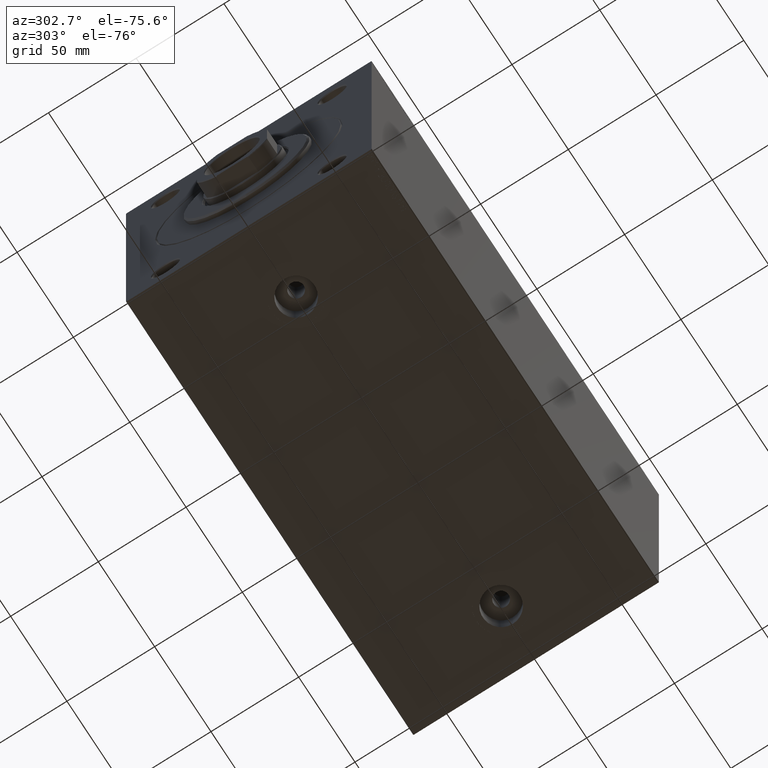
[diagram: clean part render]
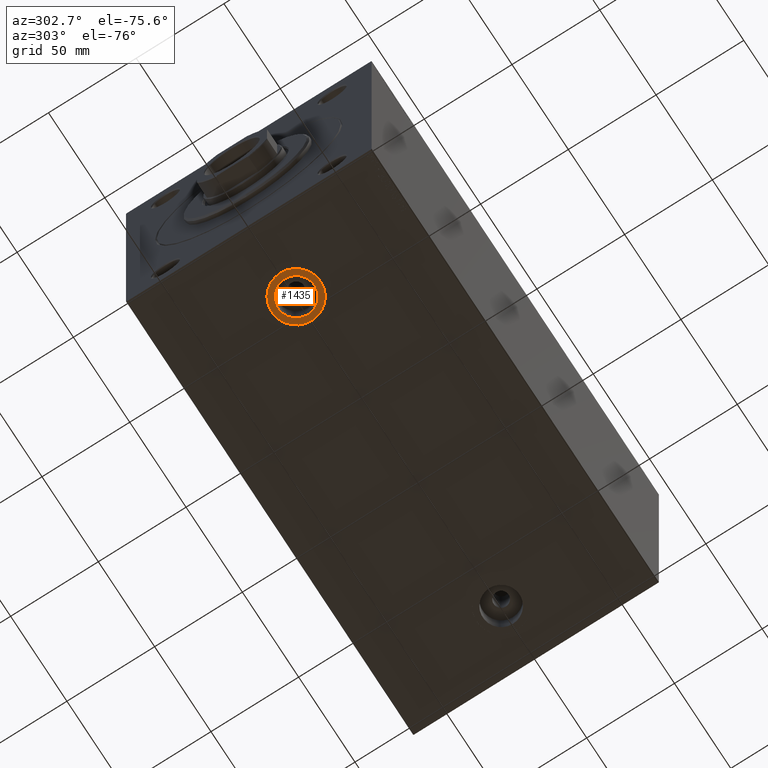
[diagram: same view with one face highlighted and labeled with its STEP entity id]
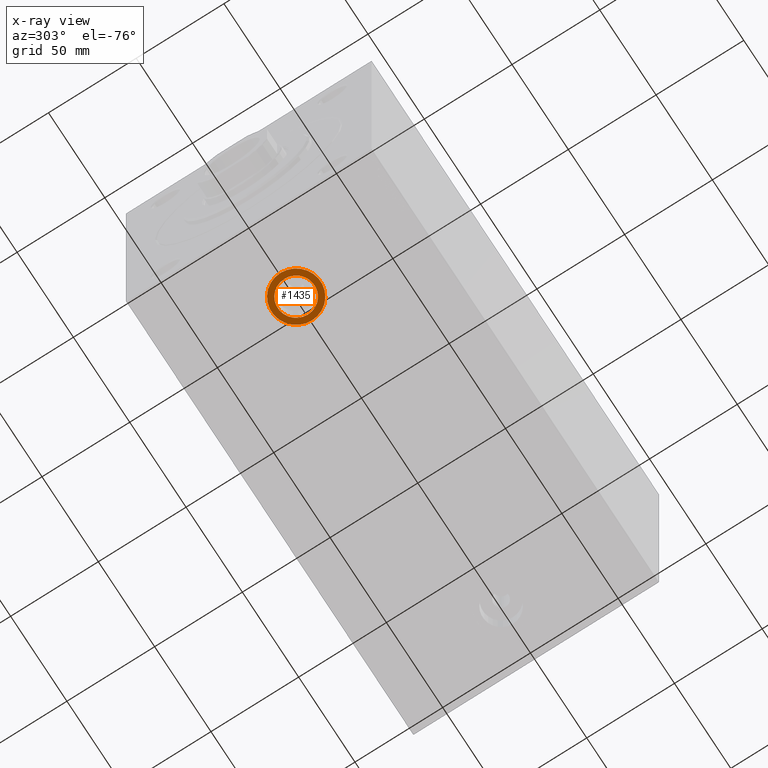
[diagram: x-ray of the same camera — body ghosted, the highlighted face saturated]
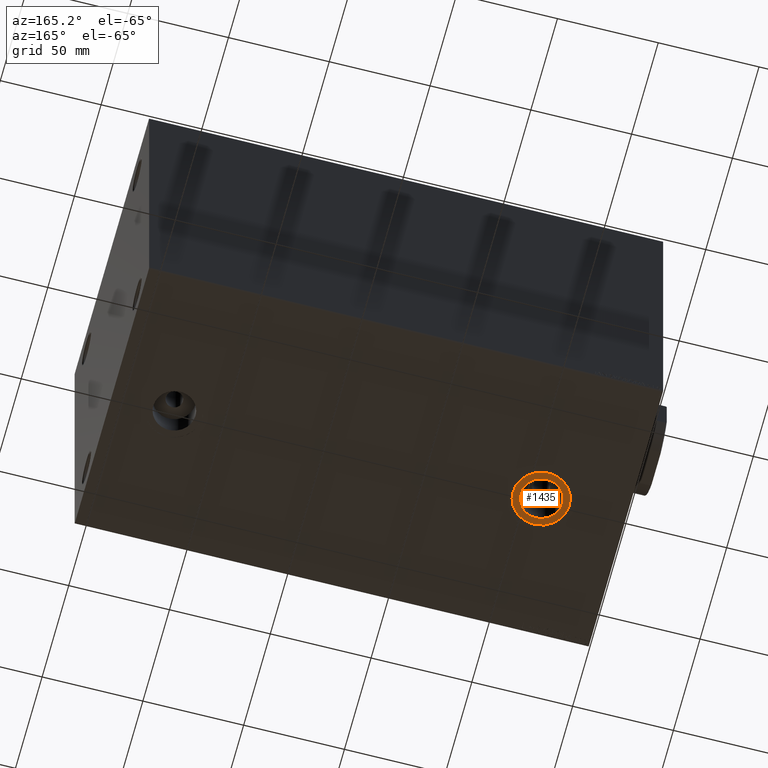
[diagram: same view with one face highlighted and labeled with its STEP entity id]
A machine part, auxiliary view. The second image highlights one B-rep face of the part: STEP entity #1435.
The next image is the same camera in x-ray: the body ghosted, the highlighted face saturated — about 0% of this face is hidden behind the body in this view.
A second angle (auxiliary view) of the same face is appended — the face is thin or edge-on in the first view.
In plain terms, the highlighted planar face has unit normal (0, 0, -1).
Its self-contained STEP definition (entity closure, byte-faithful):
#546 = CIRCLE ( 'NONE', #11614, 13.99999999999999822 ) ;
#1435 = ADVANCED_FACE ( 'NONE', ( #16807, #44978 ), #13336, .T. ) ;
#1442 = DIRECTION ( 'NONE',  ( -1.000000000000000000, 0.000000000000000000, 0.000000000000000000 ) ) ;
#3407 = VERTEX_POINT ( 'NONE', #18009 ) ;
#3649 = VERTEX_POINT ( 'NONE', #20059 ) ;
#5620 = EDGE_CURVE ( 'NONE', #10007, #3649, #546, .T. ) ;
#5857 = DIRECTION ( 'NONE',  ( 0.000000000000000000, 0.000000000000000000, -1.000000000000000000 ) ) ;
#6392 = DIRECTION ( 'NONE',  ( -1.000000000000000000, 0.000000000000000000, -0.000000000000000000 ) ) ;
#8221 = AXIS2_PLACEMENT_3D ( 'NONE', #8625, #5857, #43744 ) ;
#8538 = DIRECTION ( 'NONE',  ( 0.000000000000000000, 0.000000000000000000, -1.000000000000000000 ) ) ;
#8625 = CARTESIAN_POINT ( 'NONE',  ( 42.00000000000000000, -5.359976829575725911E-15, -84.90000000000000568 ) ) ;
#9119 = EDGE_LOOP ( 'NONE', ( #28757, #9907 ) ) ;
#9865 = CARTESIAN_POINT ( 'NONE',  ( 0.000000000000000000, 0.000000000000000000, -84.90000000000000568 ) ) ;
#9907 = ORIENTED_EDGE ( 'NONE', *, *, #5620, .T. ) ;
#10007 = VERTEX_POINT ( 'NONE', #19173 ) ;
#10222 = CARTESIAN_POINT ( 'NONE',  ( 52.47999999999999687, -4.076546984069300422E-15, -84.90000000000000568 ) ) ;
#11614 = AXIS2_PLACEMENT_3D ( 'NONE', #22713, #33352, #1442 ) ;
#12069 = AXIS2_PLACEMENT_3D ( 'NONE', #36742, #8538, #22639 ) ;
#13336 = PLANE ( 'NONE',  #24099 ) ;
#16354 = AXIS2_PLACEMENT_3D ( 'NONE', #28579, #31376, #20971 ) ;
#16807 = FACE_BOUND ( 'NONE', #37375, .T. ) ;
#17082 = CIRCLE ( 'NONE', #16354, 10.47999999999999687 ) ;
#18009 = CARTESIAN_POINT ( 'NONE',  ( 31.52000000000000668, -5.359976829575725911E-15, -84.90000000000000568 ) ) ;
#18818 = EDGE_CURVE ( 'NONE', #3407, #28112, #17082, .T. ) ;
#19173 = CARTESIAN_POINT ( 'NONE',  ( 56.00000000000000711, -3.645471310769431470E-15, -84.90000000000000568 ) ) ;
#19346 = EDGE_CURVE ( 'NONE', #28112, #3407, #36260, .T. ) ;
#20059 = CARTESIAN_POINT ( 'NONE',  ( 28.00000000000000355, -5.359976829575725911E-15, -84.90000000000000568 ) ) ;
#20971 = DIRECTION ( 'NONE',  ( -1.000000000000000000, 0.000000000000000000, 0.000000000000000000 ) ) ;
#22639 = DIRECTION ( 'NONE',  ( -1.000000000000000000, 0.000000000000000000, 0.000000000000000000 ) ) ;
#22713 = CARTESIAN_POINT ( 'NONE',  ( 42.00000000000000000, -5.359976829575725911E-15, -84.90000000000000568 ) ) ;
#23962 = DIRECTION ( 'NONE',  ( 0.000000000000000000, 0.000000000000000000, -1.000000000000000000 ) ) ;
#24099 = AXIS2_PLACEMENT_3D ( 'NONE', #9865, #23962, #6392 ) ;
#24830 = EDGE_CURVE ( 'NONE', #3649, #10007, #29031, .T. ) ;
#28112 = VERTEX_POINT ( 'NONE', #10222 ) ;
#28579 = CARTESIAN_POINT ( 'NONE',  ( 42.00000000000000000, -5.359976829575725911E-15, -84.90000000000000568 ) ) ;
#28757 = ORIENTED_EDGE ( 'NONE', *, *, #24830, .T. ) ;
#29031 = CIRCLE ( 'NONE', #12069, 13.99999999999999822 ) ;
#31376 = DIRECTION ( 'NONE',  ( 0.000000000000000000, 0.000000000000000000, -1.000000000000000000 ) ) ;
#31997 = ORIENTED_EDGE ( 'NONE', *, *, #19346, .F. ) ;
#33352 = DIRECTION ( 'NONE',  ( 0.000000000000000000, 0.000000000000000000, -1.000000000000000000 ) ) ;
#36260 = CIRCLE ( 'NONE', #8221, 10.47999999999999687 ) ;
#36742 = CARTESIAN_POINT ( 'NONE',  ( 42.00000000000000000, -5.359976829575725911E-15, -84.90000000000000568 ) ) ;
#37375 = EDGE_LOOP ( 'NONE', ( #42186, #31997 ) ) ;
#42186 = ORIENTED_EDGE ( 'NONE', *, *, #18818, .F. ) ;
#43744 = DIRECTION ( 'NONE',  ( -1.000000000000000000, 0.000000000000000000, 0.000000000000000000 ) ) ;
#44978 = FACE_OUTER_BOUND ( 'NONE', #9119, .T. ) ;